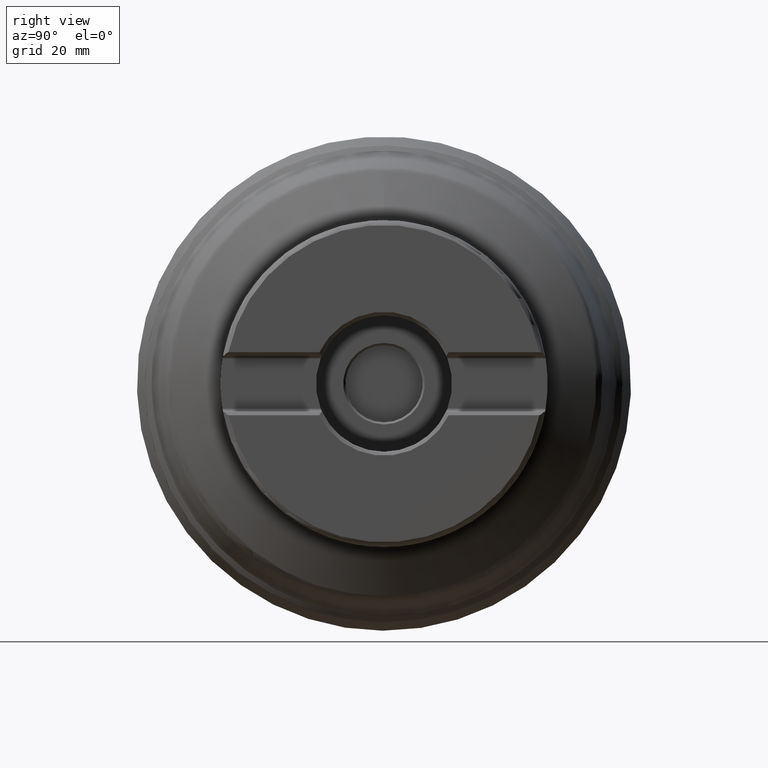
[diagram: clean part render]
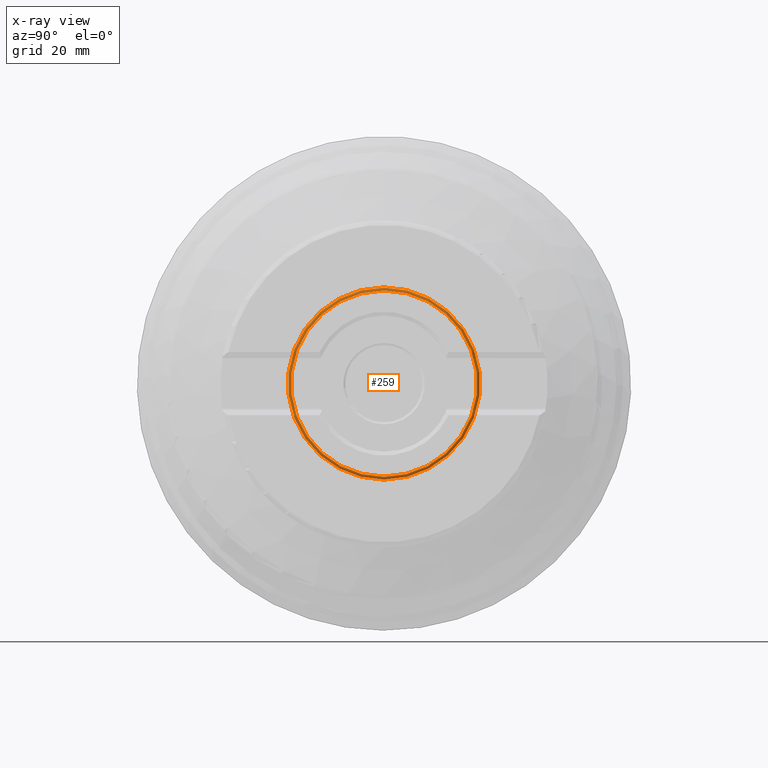
[diagram: x-ray — body ghosted, one internal face saturated and labeled with its STEP entity id]
A machine part, right view, then the same camera in x-ray: the body is ghosted and one INTERNAL B-rep face — a face not visible from any outside direction — is saturated and labeled: STEP entity #259.
In plain terms, the highlighted toroidal blend (fillet) surface has major radius 21.7 mm and minor (blend) radius 0.8 mm.
Its self-contained STEP definition (entity closure, byte-faithful):
#118=TOROIDAL_SURFACE('',#1135,21.7,0.8);
#259=ADVANCED_FACE('',(#439,#440),#118,.F.);
#439=FACE_BOUND('',#537,.T.);
#440=FACE_BOUND('',#538,.T.);
#537=EDGE_LOOP('',(#675));
#538=EDGE_LOOP('',(#676));
#675=ORIENTED_EDGE('',*,*,#966,.F.);
#676=ORIENTED_EDGE('',*,*,#967,.F.);
#872=VERTEX_POINT('',#1749);
#873=VERTEX_POINT('',#1751);
#966=EDGE_CURVE('',#872,#872,#1058,.T.);
#967=EDGE_CURVE('',#873,#873,#1059,.T.);
#1058=CIRCLE('',#1133,22.3860253757177);
#1059=CIRCLE('',#1134,21.7);
#1133=AXIS2_PLACEMENT_3D('',#1748,#1328,#1329);
#1134=AXIS2_PLACEMENT_3D('',#1750,#1330,#1331);
#1135=AXIS2_PLACEMENT_3D('',#1752,#1332,#1333);
#1328=DIRECTION('',(1.,0.,0.));
#1329=DIRECTION('',(0.,0.,-1.));
#1330=DIRECTION('',(-1.,0.,0.));
#1331=DIRECTION('',(0.,0.,-1.));
#1332=DIRECTION('',(1.,0.,0.));
#1333=DIRECTION('',(0.,0.,-1.));
#1748=CARTESIAN_POINT('',(14.4115448746752,0.,0.));
#1749=CARTESIAN_POINT('',(14.4115448746752,0.,-22.3860253757177));
#1750=CARTESIAN_POINT('',(14.8,0.,0.));
#1751=CARTESIAN_POINT('',(14.8,0.,-21.7));
#1752=CARTESIAN_POINT('',(14.,0.,0.));